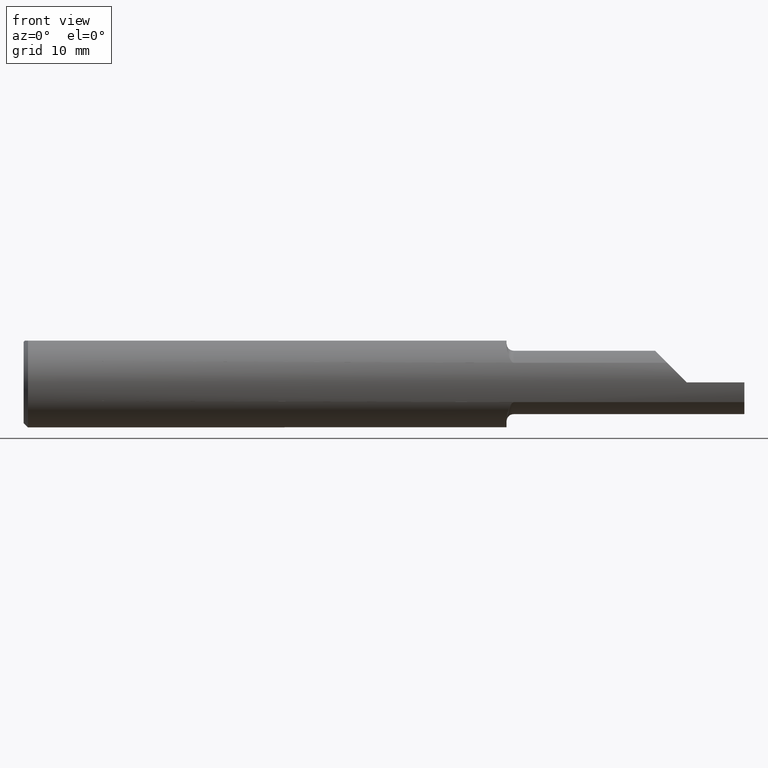
[diagram: clean part render]
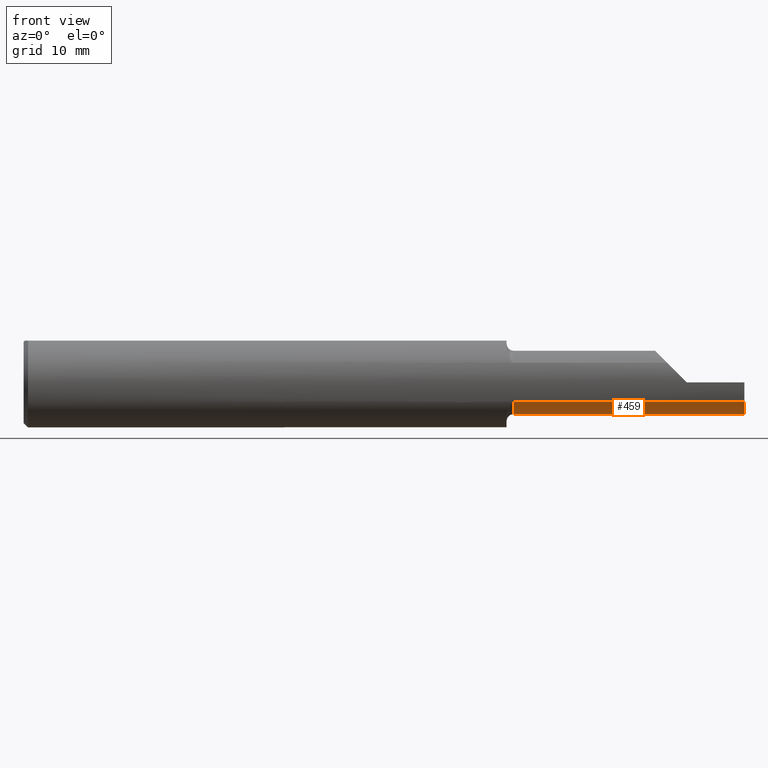
[diagram: same view with one face highlighted and labeled with its STEP entity id]
A machine part, front view. The second image highlights one B-rep face of the part: STEP entity #459.
In plain terms, the highlighted cylindrical surface (edge-blend (fillet) strip) has radius 2.794 mm, axis along (-1, -0, -0).
Its self-contained STEP definition (entity closure, byte-faithful):
#23 = DIRECTION ( 'NONE',  ( -1.000000000000000000, -0.000000000000000000, -0.000000000000000000 ) ) ;
#26 = VERTEX_POINT ( 'NONE', #874 ) ;
#37 = CARTESIAN_POINT ( 'NONE',  ( 2.497265575455494879, -0.05410000000000006470, -0.1100000000000000006 ) ) ;
#80 = VERTEX_POINT ( 'NONE', #532 ) ;
#83 = CARTESIAN_POINT ( 'NONE',  ( 1.675000000000000044, -0.05409999999999999531, 0.000000000000000000 ) ) ;
#88 = DIRECTION ( 'NONE',  ( -1.000000000000000000, -0.000000000000000000, -0.000000000000000000 ) ) ;
#97 = CARTESIAN_POINT ( 'NONE',  ( 2.500000000000000000, -0.05409999999999999531, 0.000000000000000000 ) ) ;
#110 = CARTESIAN_POINT ( 'NONE',  ( 2.498131500062763966, -0.05744828201812182678, -0.1099999999999999867 ) ) ;
#112 = CARTESIAN_POINT ( 'NONE',  ( 1.699999999999999956, -0.1404253234750461321, -0.06817579135535316304 ) ) ;
#118 = ORIENTED_EDGE ( 'NONE', *, *, #662, .F. ) ;
#127 = AXIS2_PLACEMENT_3D ( 'NONE', #97, #584, #232 ) ;
#154 = DIRECTION ( 'NONE',  ( -1.000000000000000000, -0.000000000000000000, -0.000000000000000000 ) ) ;
#182 = EDGE_CURVE ( 'NONE', #632, #309, #386, .T. ) ;
#226 = LINE ( 'NONE', #796, #749 ) ;
#229 = DIRECTION ( 'NONE',  ( 0.000000000000000000, 0.000000000000000000, 1.000000000000000000 ) ) ;
#232 = DIRECTION ( 'NONE',  ( 0.000000000000000000, 0.000000000000000000, 1.000000000000000000 ) ) ;
#237 = LINE ( 'NONE', #596, #797 ) ;
#239 = ORIENTED_EDGE ( 'NONE', *, *, #182, .T. ) ;
#261 = CARTESIAN_POINT ( 'NONE',  ( 1.699999999999999956, -0.05409999999999999531, 0.000000000000000000 ) ) ;
#270 = CARTESIAN_POINT ( 'NONE',  ( 2.055000000000000160, -0.1404253234750461321, -0.06817579135535316304 ) ) ;
#271 = CARTESIAN_POINT ( 'NONE',  ( 2.500000000000000000, -0.06412741814737722701, -0.1095420051181173471 ) ) ;
#278 = FACE_OUTER_BOUND ( 'NONE', #357, .T. ) ;
#286 = CARTESIAN_POINT ( 'NONE',  ( 2.457659549259122667, -0.05410000000000000225, -0.1100000000000000006 ) ) ;
#309 = VERTEX_POINT ( 'NONE', #271 ) ;
#340 = ORIENTED_EDGE ( 'NONE', *, *, #586, .F. ) ;
#357 = EDGE_LOOP ( 'NONE', ( #514, #118, #239, #340, #450, #832 ) ) ;
#386 =( BOUNDED_CURVE ( )  B_SPLINE_CURVE ( 3, ( #606, #110, #675, #536 ),
 .UNSPECIFIED., .F., .F. ) 
 B_SPLINE_CURVE_WITH_KNOTS ( ( 4, 4 ),
 ( 0.6981317007977293487, 0.7894167739939454975 ),
 .UNSPECIFIED. ) 
 CURVE ( )  GEOMETRIC_REPRESENTATION_ITEM ( )  RATIONAL_B_SPLINE_CURVE ( ( 1.000000000000000000, 0.9993057068285278177, 0.9993057068285278177, 1.000000000000000000 ) ) 
 REPRESENTATION_ITEM ( '' )  );
#398 = DIRECTION ( 'NONE',  ( -1.000000000000000000, -0.000000000000000000, -0.000000000000000000 ) ) ;
#450 = ORIENTED_EDGE ( 'NONE', *, *, #763, .T. ) ;
#455 = VERTEX_POINT ( 'NONE', #286 ) ;
#459 = ADVANCED_FACE ( 'NONE', ( #278 ), #718, .T. ) ;
#503 = EDGE_CURVE ( 'NONE', #455, #80, #226, .T. ) ;
#504 = AXIS2_PLACEMENT_3D ( 'NONE', #261, #546, #761 ) ;
#514 = ORIENTED_EDGE ( 'NONE', *, *, #503, .F. ) ;
#524 = CIRCLE ( 'NONE', #127, 0.1100000000000000006 ) ;
#526 = VECTOR ( 'NONE', #398, 39.37007874015748143 ) ;
#532 = CARTESIAN_POINT ( 'NONE',  ( 1.699999999999999956, -0.05409999999999997450, -0.1100000000000000006 ) ) ;
#536 = CARTESIAN_POINT ( 'NONE',  ( 2.500000000000000000, -0.06412741814737722701, -0.1095420051181173471 ) ) ;
#546 = DIRECTION ( 'NONE',  ( 1.000000000000000000, 0.000000000000000000, 0.000000000000000000 ) ) ;
#584 = DIRECTION ( 'NONE',  ( 1.000000000000000000, -0.000000000000000000, -0.000000000000000000 ) ) ;
#586 = EDGE_CURVE ( 'NONE', #26, #309, #524, .T. ) ;
#596 = CARTESIAN_POINT ( 'NONE',  ( 2.500000000000000000, -0.05410000000000000919, -0.1100000000000000006 ) ) ;
#606 = CARTESIAN_POINT ( 'NONE',  ( 2.497265575455494879, -0.05410000000000006470, -0.1100000000000000006 ) ) ;
#632 = VERTEX_POINT ( 'NONE', #37 ) ;
#662 = EDGE_CURVE ( 'NONE', #632, #455, #237, .T. ) ;
#675 = CARTESIAN_POINT ( 'NONE',  ( 2.499043608181370502, -0.06079307700223171573, -0.1098472289714905598 ) ) ;
#718 = CYLINDRICAL_SURFACE ( 'NONE', #767, 0.1100000000000000006 ) ;
#739 = VERTEX_POINT ( 'NONE', #112 ) ;
#749 = VECTOR ( 'NONE', #88, 39.37007874015748143 ) ;
#761 = DIRECTION ( 'NONE',  ( 0.000000000000000000, 0.000000000000000000, -1.000000000000000000 ) ) ;
#763 = EDGE_CURVE ( 'NONE', #26, #739, #912, .T. ) ;
#767 = AXIS2_PLACEMENT_3D ( 'NONE', #83, #154, #229 ) ;
#796 = CARTESIAN_POINT ( 'NONE',  ( 1.675000000000000044, -0.05409999999999997450, -0.1100000000000000006 ) ) ;
#797 = VECTOR ( 'NONE', #23, 39.37007874015748143 ) ;
#831 = CIRCLE ( 'NONE', #504, 0.1100000000000000006 ) ;
#832 = ORIENTED_EDGE ( 'NONE', *, *, #834, .T. ) ;
#834 = EDGE_CURVE ( 'NONE', #739, #80, #831, .T. ) ;
#874 = CARTESIAN_POINT ( 'NONE',  ( 2.500000000000000000, -0.1404253234750461043, -0.06817579135535321855 ) ) ;
#912 = LINE ( 'NONE', #270, #526 ) ;